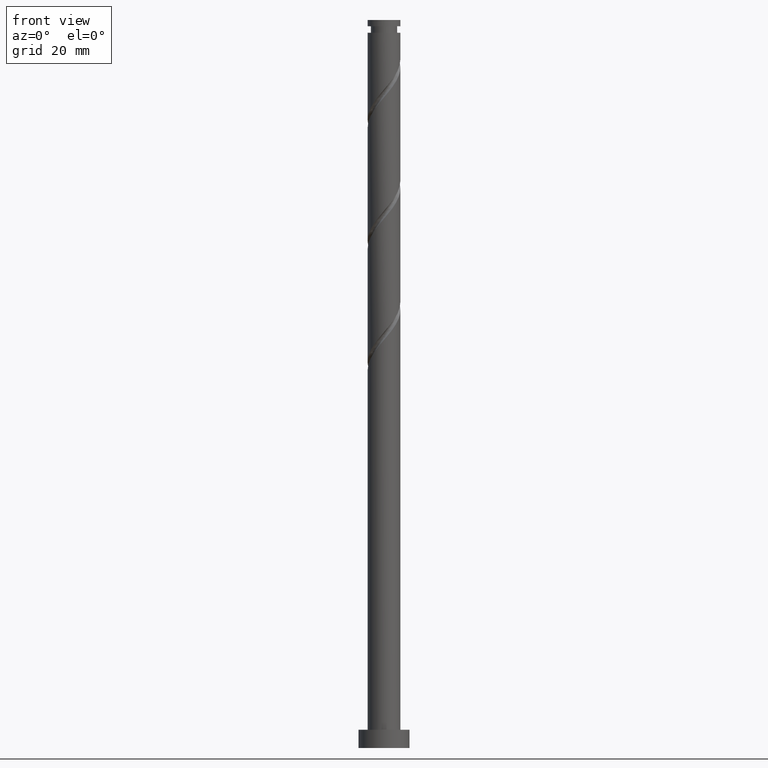
[diagram: clean part render]
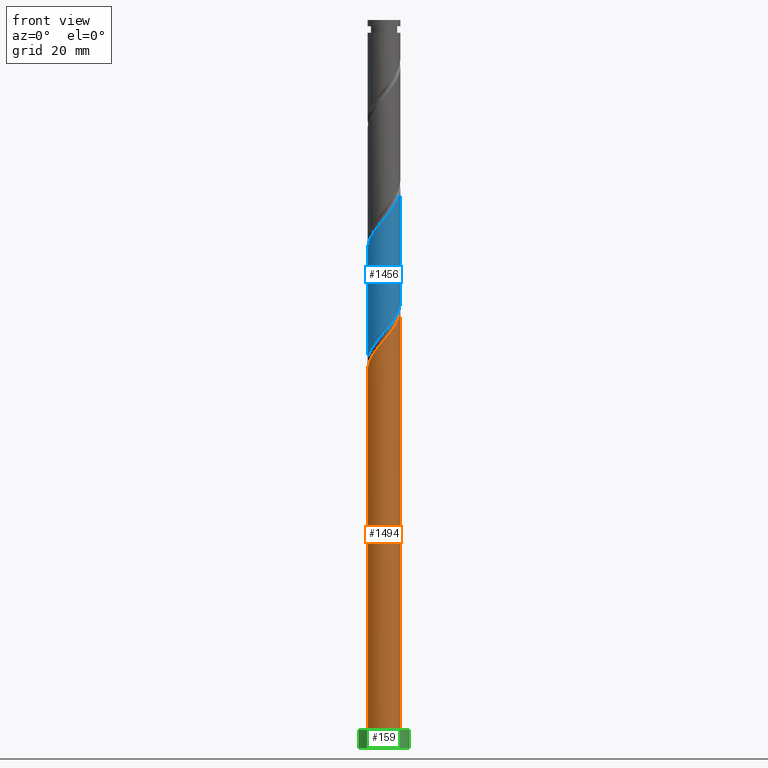
[diagram: same view with three faces highlighted in distinct colors, each labeled with its STEP entity id]
A machine part, front view with three faces highlighted in distinct colors.
Their STEP definitions:

[orange] entity #1494 — the highlighted cylindrical surface (edge-blend (fillet) strip) has radius 4.5 mm, axis along (-0, -0, -1).
#21 = CARTESIAN_POINT ( 'NONE',  ( -1.429484042717369618, -4.266916377387359738, 110.3896359296881542 ) ) ;
#105 = VECTOR ( 'NONE', #1046, 1000.000000000000000 ) ;
#117 = CARTESIAN_POINT ( 'NONE',  ( 2.980515957282637185, -3.371427683991401913, 115.9451914852437255 ) ) ;
#121 = EDGE_LOOP ( 'NONE', ( #753, #1724, #1232, #478 ) ) ;
#153 = LINE ( 'NONE', #1084, #1713 ) ;
#157 = CARTESIAN_POINT ( 'NONE',  ( -3.371427683991401025, -2.980515957282637185, 107.6118581519103827 ) ) ;
#242 = VERTEX_POINT ( 'NONE', #1443 ) ;
#253 = CARTESIAN_POINT ( 'NONE',  ( -4.410000000000008136, -0.8954886933959593787, 104.8340803741325828 ) ) ;
#275 = CARTESIAN_POINT ( 'NONE',  ( -4.292106676953157063, -1.476076207756375158, 105.5285248185770399 ) ) ;
#279 = DIRECTION ( 'NONE',  ( 1.000000000000000000, 0.000000000000000000, 0.000000000000000000 ) ) ;
#358 = CARTESIAN_POINT ( 'NONE',  ( -4.500000000000000000, 0.000000000000000000, 200.0000000000000000 ) ) ;
#377 =( BOUNDED_CURVE ( )  B_SPLINE_CURVE ( 2, ( #1234, #1500, #253, #275, #817, #551, #157, #1200, #1737, #695, #21, #559, #1109, #1642, #426, #973, #787, #1333, #117, #581, #1262, #590, #1142, #1134, #1394, #436, #443 ),
 .UNSPECIFIED., .F., .T. ) 
 B_SPLINE_CURVE_WITH_KNOTS ( ( 3, 2, 2, 2, 2, 2, 2, 2, 2, 2, 2, 2, 2, 3 ),
 ( 0.05453176698144658607, 0.06250000000000000000, 0.07291666666666662966, 0.08333333333333337034, 0.09375000000000000000, 0.1041666666666666297, 0.1145833333333333703, 0.1250000000000000000, 0.1354166666666666297, 0.1458333333333333703, 0.1562500000000000000, 0.1666666666666666297, 0.1770833333333333703, 0.1795317669814462669 ),
 .UNSPECIFIED. ) 
 CURVE ( )  GEOMETRIC_REPRESENTATION_ITEM ( )  RATIONAL_B_SPLINE_CURVE ( ( 0.9062941362546456103, 0.9031415850403503587, 0.9090909090909256030, 0.9013135103398440817, 0.9090909090909256030, 0.9013135103398440817, 0.9090909090909256030, 0.9013135103398440817, 0.9090909090909256030, 0.9013135103398440817, 0.9090909090909256030, 0.9013135103398440817, 0.9090909090909256030, 0.9013135103398440817, 0.9090909090909256030, 0.9013135103398440817, 0.9090909090909256030, 0.9013135103398440817, 0.9090909090909256030, 0.9013135103398440817, 0.9090909090909256030, 0.9013135103398440817, 0.9090909090909256030, 0.9013135103398440817, 0.9090909090909256030, 0.9072628343904193260, 0.9062941362546459434 ) ) 
 REPRESENTATION_ITEM ( '' )  );
#410 = VERTEX_POINT ( 'NONE', #964 ) ;
#413 = DIRECTION ( 'NONE',  ( -1.000000000000000000, 0.000000000000000000, 0.000000000000000000 ) ) ;
#422 = FACE_OUTER_BOUND ( 'NONE', #121, .T. ) ;
#426 = CARTESIAN_POINT ( 'NONE',  ( 0.8954886933959591566, -4.410000000000008136, 113.1674137074659399 ) ) ;
#436 = CARTESIAN_POINT ( 'NONE',  ( 4.500000000000006217, -0.1383387824595370963, 120.2740166975610521 ) ) ;
#443 = CARTESIAN_POINT ( 'NONE',  ( 4.500000000000005329, -2.990756888724012433E-17, 120.4371803855891727 ) ) ;
#478 = ORIENTED_EDGE ( 'NONE', *, *, #1508, .T. ) ;
#492 = EDGE_CURVE ( 'NONE', #242, #1097, #377, .T. ) ;
#494 = LINE ( 'NONE', #358, #105 ) ;
#545 = DIRECTION ( 'NONE',  ( -0.000000000000000000, -0.000000000000000000, -1.000000000000000000 ) ) ;
#551 = CARTESIAN_POINT ( 'NONE',  ( -3.763820053866749227, -2.536659082249879571, 106.9174137074659257 ) ) ;
#559 = CARTESIAN_POINT ( 'NONE',  ( -0.8677338446377593772, -4.455111521872428426, 111.0840803741325828 ) ) ;
#581 = CARTESIAN_POINT ( 'NONE',  ( 3.424372832315394799, -2.979035314116054600, 116.6396359296881400 ) ) ;
#590 = CARTESIAN_POINT ( 'NONE',  ( 4.078721232902290161, -1.991234240796978749, 118.0285248185770541 ) ) ;
#695 = CARTESIAN_POINT ( 'NONE',  ( -1.991234240796978527, -4.078721232902291050, 109.6951914852436971 ) ) ;
#753 = ORIENTED_EDGE ( 'NONE', *, *, #833, .F. ) ;
#787 = CARTESIAN_POINT ( 'NONE',  ( 2.006367645003126920, -4.027963365409951813, 114.5563025963548540 ) ) ;
#817 = CARTESIAN_POINT ( 'NONE',  ( -4.027963365409951813, -2.006367645003127809, 106.2229692630215112 ) ) ;
#833 = EDGE_CURVE ( 'NONE', #1097, #410, #153, .T. ) ;
#964 = CARTESIAN_POINT ( 'NONE',  ( 4.500000000000000000, 5.510910596163088569E-16, 5.000000000000000000 ) ) ;
#973 = CARTESIAN_POINT ( 'NONE',  ( 1.476076207756375158, -4.292106676953157063, 113.8618581519103685 ) ) ;
#988 = CARTESIAN_POINT ( 'NONE',  ( 0.000000000000000000, 0.000000000000000000, 200.0000000000000000 ) ) ;
#1046 = DIRECTION ( 'NONE',  ( -0.000000000000000000, -0.000000000000000000, -1.000000000000000000 ) ) ;
#1084 = CARTESIAN_POINT ( 'NONE',  ( 4.500000000000000000, 5.510910596163088569E-16, 200.0000000000000000 ) ) ;
#1097 = VERTEX_POINT ( 'NONE', #1339 ) ;
#1109 = CARTESIAN_POINT ( 'NONE',  ( -0.2764163328011091103, -4.491502422459643817, 111.7785248185770541 ) ) ;
#1134 = CARTESIAN_POINT ( 'NONE',  ( 4.455111521872428426, -0.8677338446377614867, 119.4174137074658972 ) ) ;
#1142 = CARTESIAN_POINT ( 'NONE',  ( 4.266916377387359738, -1.429484042717370507, 118.7229692630215254 ) ) ;
#1186 = AXIS2_PLACEMENT_3D ( 'NONE', #1659, #1241, #279 ) ;
#1200 = CARTESIAN_POINT ( 'NONE',  ( -2.979035314116054600, -3.424372832315394799, 108.3063025963548256 ) ) ;
#1232 = ORIENTED_EDGE ( 'NONE', *, *, #1700, .T. ) ;
#1234 = CARTESIAN_POINT ( 'NONE',  ( -4.500000000000005329, -2.706634984295230734E-15, 103.7705137189225297 ) ) ;
#1241 = DIRECTION ( 'NONE',  ( 0.000000000000000000, 0.000000000000000000, 1.000000000000000000 ) ) ;
#1262 = CARTESIAN_POINT ( 'NONE',  ( 3.751547032608842702, -2.485134777456517341, 117.3340803741326113 ) ) ;
#1333 = CARTESIAN_POINT ( 'NONE',  ( 2.536659082249878683, -3.763820053866749227, 115.2507470407992685 ) ) ;
#1339 = CARTESIAN_POINT ( 'NONE',  ( 4.500000000000006217, -2.990756888724012433E-17, 120.4371803855891727 ) ) ;
#1370 = CYLINDRICAL_SURFACE ( 'NONE', #1417, 4.500000000000000000 ) ;
#1378 = DIRECTION ( 'NONE',  ( -0.000000000000000000, -0.000000000000000000, -1.000000000000000000 ) ) ;
#1394 = CARTESIAN_POINT ( 'NONE',  ( 4.491502422459643817, -0.2764163328011113863, 120.1118581519103685 ) ) ;
#1417 = AXIS2_PLACEMENT_3D ( 'NONE', #988, #1378, #413 ) ;
#1443 = CARTESIAN_POINT ( 'NONE',  ( -4.500000000000006217, -2.706634984295231129E-15, 103.7705137189225297 ) ) ;
#1494 = ADVANCED_FACE ( 'NONE', ( #422 ), #1370, .T. ) ;
#1500 = CARTESIAN_POINT ( 'NONE',  ( -4.500000000000004441, -0.4522670168666608759, 104.3039400881118297 ) ) ;
#1508 = EDGE_CURVE ( 'NONE', #1596, #410, #1743, .T. ) ;
#1596 = VERTEX_POINT ( 'NONE', #1689 ) ;
#1642 = CARTESIAN_POINT ( 'NONE',  ( 0.3149011790355413232, -4.527893323046858320, 112.4729692630214686 ) ) ;
#1659 = CARTESIAN_POINT ( 'NONE',  ( 0.000000000000000000, 0.000000000000000000, 5.000000000000000000 ) ) ;
#1689 = CARTESIAN_POINT ( 'NONE',  ( -4.500000000000000000, 0.000000000000000000, 5.000000000000000000 ) ) ;
#1700 = EDGE_CURVE ( 'NONE', #242, #1596, #494, .T. ) ;
#1713 = VECTOR ( 'NONE', #545, 1000.000000000000000 ) ;
#1724 = ORIENTED_EDGE ( 'NONE', *, *, #492, .F. ) ;
#1737 = CARTESIAN_POINT ( 'NONE',  ( -2.485134777456515565, -3.751547032608843590, 109.0007470407992685 ) ) ;
#1743 = CIRCLE ( 'NONE', #1186, 4.500000000000000000 ) ;

[blue] entity #1456 — the highlighted cylindrical surface (edge-blend (fillet) strip) has radius 4.5 mm, axis along (-0, -0, -1).
#78 = EDGE_CURVE ( 'NONE', #1118, #495, #1297, .T. ) ;
#83 = CARTESIAN_POINT ( 'NONE',  ( -3.424372832315393467, -2.979035314116047495, 109.6951914852436971 ) ) ;
#147 = DIRECTION ( 'NONE',  ( -1.000000000000000000, 0.000000000000000000, 0.000000000000000000 ) ) ;
#170 = CARTESIAN_POINT ( 'NONE',  ( 2.006367645003126920, -4.027963365409951813, 147.8896359296881826 ) ) ;
#175 = LINE ( 'NONE', #188, #891 ) ;
#188 = CARTESIAN_POINT ( 'NONE',  ( 4.500000000000000000, 5.510910596163088569E-16, 200.0000000000000000 ) ) ;
#191 = VECTOR ( 'NONE', #1223, 1000.000000000000000 ) ;
#205 = CARTESIAN_POINT ( 'NONE',  ( 4.455111521872428426, -0.8677338446377614867, 152.7507470407992400 ) ) ;
#213 = CARTESIAN_POINT ( 'NONE',  ( 4.292106676953146405, -1.476076207756378267, 120.8063025963548114 ) ) ;
#240 = AXIS2_PLACEMENT_3D ( 'NONE', #812, #1130, #147 ) ;
#255 = CARTESIAN_POINT ( 'NONE',  ( -4.500000000000006217, -2.706634984295231129E-15, 137.1038470522558441 ) ) ;
#267 = CARTESIAN_POINT ( 'NONE',  ( -0.8677338446377593772, -4.455111521872428426, 144.4174137074658972 ) ) ;
#294 = CARTESIAN_POINT ( 'NONE',  ( -4.027963365409951813, -2.006367645003127809, 139.5563025963548114 ) ) ;
#296 = ORIENTED_EDGE ( 'NONE', *, *, #856, .F. ) ;
#345 = CARTESIAN_POINT ( 'NONE',  ( -2.980515957282634965, -3.371427683991394364, 110.3896359296881400 ) ) ;
#363 = CARTESIAN_POINT ( 'NONE',  ( 4.500000000000006217, -2.990756888724012433E-17, 153.7705137189225297 ) ) ;
#364 = CARTESIAN_POINT ( 'NONE',  ( -0.8954886933959594897, -4.409999999999999254, 113.1674137074658830 ) ) ;
#370 = ORIENTED_EDGE ( 'NONE', *, *, #78, .F. ) ;
#421 = CARTESIAN_POINT ( 'NONE',  ( -4.500000000000005329, -0.4522670168666444446, 137.6372734214450873 ) ) ;
#424 = ORIENTED_EDGE ( 'NONE', *, *, #636, .F. ) ;
#430 = CARTESIAN_POINT ( 'NONE',  ( 0.8954886933959591566, -4.410000000000008136, 146.5007470407992969 ) ) ;
#451 = DIRECTION ( 'NONE',  ( -0.000000000000000000, -0.000000000000000000, -1.000000000000000000 ) ) ;
#474 = CARTESIAN_POINT ( 'NONE',  ( 2.979035314116047495, -3.424372832315392579, 118.0285248185770683 ) ) ;
#495 = VERTEX_POINT ( 'NONE', #1245 ) ;
#510 = CARTESIAN_POINT ( 'NONE',  ( -4.500000000000001776, -0.1383387824595271598, 106.0608107173707850 ) ) ;
#517 = CARTESIAN_POINT ( 'NONE',  ( 4.500000000000000000, 6.474988664087530280E-15, 122.5643136960093216 ) ) ;
#555 = LINE ( 'NONE', #1106, #191 ) ;
#562 = CARTESIAN_POINT ( 'NONE',  ( -1.429484042717369618, -4.266916377387359738, 143.7229692630214970 ) ) ;
#586 = CYLINDRICAL_SURFACE ( 'NONE', #240, 4.500000000000000000 ) ;
#619 = CARTESIAN_POINT ( 'NONE',  ( -2.006367645003127365, -4.027963365409944707, 111.7785248185770257 ) ) ;
#629 = CARTESIAN_POINT ( 'NONE',  ( 3.371427683991394364, -2.980515957282635853, 118.7229692630214686 ) ) ;
#634 = CARTESIAN_POINT ( 'NONE',  ( 4.500000000000006217, -2.990756888724012433E-17, 153.7705137189225297 ) ) ;
#636 = EDGE_CURVE ( 'NONE', #1074, #1118, #175, .T. ) ;
#647 = CARTESIAN_POINT ( 'NONE',  ( -0.3149011790355445983, -4.527893323046852991, 113.8618581519103827 ) ) ;
#690 = CARTESIAN_POINT ( 'NONE',  ( -3.763820053866749227, -2.536659082249879571, 140.2507470407992969 ) ) ;
#697 = CARTESIAN_POINT ( 'NONE',  ( -4.500000000000005329, -2.706634984295231129E-15, 137.1038470522558441 ) ) ;
#708 = CARTESIAN_POINT ( 'NONE',  ( 2.536659082249878683, -3.763820053866749227, 148.5840803741326113 ) ) ;
#749 = CARTESIAN_POINT ( 'NONE',  ( 2.980515957282637185, -3.371427683991401913, 149.2785248185770968 ) ) ;
#757 = CARTESIAN_POINT ( 'NONE',  ( -4.455111521872423985, -0.8677338446377556025, 106.9174137074659257 ) ) ;
#770 = CARTESIAN_POINT ( 'NONE',  ( 4.266916377387359738, -1.429484042717370507, 152.0563025963548398 ) ) ;
#771 = CARTESIAN_POINT ( 'NONE',  ( -4.500000000000001776, 4.949702650838273832E-15, 105.8976470293426360 ) ) ;
#777 = CARTESIAN_POINT ( 'NONE',  ( 4.500000000000001776, -0.4522670168666432233, 122.0308873268200784 ) ) ;
#812 = CARTESIAN_POINT ( 'NONE',  ( 0.000000000000000000, 0.000000000000000000, 200.0000000000000000 ) ) ;
#834 = CARTESIAN_POINT ( 'NONE',  ( -0.2764163328011091103, -4.491502422459643817, 145.1118581519103259 ) ) ;
#856 = EDGE_CURVE ( 'NONE', #1009, #1074, #1485, .T. ) ;
#882 = CARTESIAN_POINT ( 'NONE',  ( 4.078721232902290161, -1.991234240796978749, 151.3618581519103827 ) ) ;
#891 = VECTOR ( 'NONE', #451, 1000.000000000000000 ) ;
#914 = CARTESIAN_POINT ( 'NONE',  ( 0.2764163328011050580, -4.491502422459638488, 114.5563025963547972 ) ) ;
#922 = CARTESIAN_POINT ( 'NONE',  ( -4.078721232902286609, -1.991234240796972310, 108.3063025963548256 ) ) ;
#946 = CARTESIAN_POINT ( 'NONE',  ( -4.292106676953157063, -1.476076207756375158, 138.8618581519103827 ) ) ;
#968 = CARTESIAN_POINT ( 'NONE',  ( -2.979035314116054600, -3.424372832315394799, 141.6396359296882110 ) ) ;
#980 = CARTESIAN_POINT ( 'NONE',  ( 4.500000000000000000, 6.474988664087530280E-15, 122.5643136960093216 ) ) ;
#1009 = VERTEX_POINT ( 'NONE', #255 ) ;
#1034 = CARTESIAN_POINT ( 'NONE',  ( -2.536659082249878683, -3.763820053866741677, 111.0840803741325828 ) ) ;
#1043 = CARTESIAN_POINT ( 'NONE',  ( -1.476076207756376046, -4.292106676953148181, 112.4729692630214828 ) ) ;
#1074 = VERTEX_POINT ( 'NONE', #634 ) ;
#1106 = CARTESIAN_POINT ( 'NONE',  ( -4.500000000000000000, 0.000000000000000000, 200.0000000000000000 ) ) ;
#1111 = CARTESIAN_POINT ( 'NONE',  ( 0.3149011790355413232, -4.527893323046858320, 145.8063025963548114 ) ) ;
#1118 = VERTEX_POINT ( 'NONE', #517 ) ;
#1130 = DIRECTION ( 'NONE',  ( -0.000000000000000000, -0.000000000000000000, -1.000000000000000000 ) ) ;
#1162 = CARTESIAN_POINT ( 'NONE',  ( 4.409999999999999254, -0.8954886933959597117, 121.5007470407992543 ) ) ;
#1169 = CARTESIAN_POINT ( 'NONE',  ( -4.266916377387353521, -1.429484042717364067, 107.6118581519103543 ) ) ;
#1177 = CARTESIAN_POINT ( 'NONE',  ( 1.429484042717363845, -4.266916377387353521, 115.9451914852436687 ) ) ;
#1187 = CARTESIAN_POINT ( 'NONE',  ( 1.991234240796972310, -4.078721232902286609, 116.6396359296881542 ) ) ;
#1223 = DIRECTION ( 'NONE',  ( -0.000000000000000000, -0.000000000000000000, -1.000000000000000000 ) ) ;
#1238 = CARTESIAN_POINT ( 'NONE',  ( -2.485134777456515565, -3.751547032608843590, 142.3340803741325828 ) ) ;
#1245 = CARTESIAN_POINT ( 'NONE',  ( -4.500000000000000888, 4.949702650838273832E-15, 105.8976470293426360 ) ) ;
#1282 = EDGE_CURVE ( 'NONE', #1009, #495, #555, .T. ) ;
#1287 = CARTESIAN_POINT ( 'NONE',  ( 3.424372832315394799, -2.979035314116054600, 149.9729692630214970 ) ) ;
#1296 = CARTESIAN_POINT ( 'NONE',  ( 0.8677338446377543812, -4.455111521872423985, 115.2507470407992685 ) ) ;
#1297 =( BOUNDED_CURVE ( )  B_SPLINE_CURVE ( 2, ( #980, #777, #1162, #213, #1461, #1589, #629, #474, #1452, #1187, #1177, #1296, #914, #647, #364, #1043, #619, #1034, #345, #83, #1598, #922, #1169, #757, #1316, #510, #771 ),
 .UNSPECIFIED., .F., .T. ) 
 B_SPLINE_CURVE_WITH_KNOTS ( ( 3, 2, 2, 2, 2, 2, 2, 2, 2, 2, 2, 2, 2, 3 ),
 ( 0.8045317669814462391, 0.8125000000000000000, 0.8229166666666666297, 0.8333333333333333703, 0.8437500000000000000, 0.8541666666666666297, 0.8645833333333333703, 0.8750000000000000000, 0.8854166666666666297, 0.8958333333333333703, 0.9062500000000000000, 0.9166666666666666297, 0.9270833333333333703, 0.9295317669814463502 ),
 .UNSPECIFIED. ) 
 CURVE ( )  GEOMETRIC_REPRESENTATION_ITEM ( )  RATIONAL_B_SPLINE_CURVE ( ( 0.9062941362546398372, 0.9031415850403439194, 0.9090909090909194967, 0.9013135103398377534, 0.9090909090909194967, 0.9013135103398377534, 0.9090909090909194967, 0.9013135103398377534, 0.9090909090909194967, 0.9013135103398377534, 0.9090909090909194967, 0.9013135103398377534, 0.9090909090909194967, 0.9013135103398377534, 0.9090909090909194967, 0.9013135103398377534, 0.9090909090909194967, 0.9013135103398377534, 0.9090909090909194967, 0.9013135103398377534, 0.9090909090909194967, 0.9013135103398377534, 0.9090909090909194967, 0.9013135103398377534, 0.9090909090909194967, 0.9072628343904132198, 0.9062941362546397261 ) ) 
 REPRESENTATION_ITEM ( '' )  );
#1305 = CARTESIAN_POINT ( 'NONE',  ( 3.751547032608842702, -2.485134777456517341, 150.6674137074659541 ) ) ;
#1316 = CARTESIAN_POINT ( 'NONE',  ( -4.491502422459638488, -0.2764163328011062792, 106.2229692630214828 ) ) ;
#1330 = ORIENTED_EDGE ( 'NONE', *, *, #1282, .T. ) ;
#1386 = CARTESIAN_POINT ( 'NONE',  ( 1.476076207756375158, -4.292106676953157063, 147.1951914852436119 ) ) ;
#1390 = FACE_OUTER_BOUND ( 'NONE', #1441, .T. ) ;
#1441 = EDGE_LOOP ( 'NONE', ( #424, #296, #1330, #370 ) ) ;
#1451 = CARTESIAN_POINT ( 'NONE',  ( 4.500000000000007105, -0.1383387824595293247, 153.6073500308943949 ) ) ;
#1452 = CARTESIAN_POINT ( 'NONE',  ( 2.485134777456508015, -3.751547032608839150, 117.3340803741325686 ) ) ;
#1456 = ADVANCED_FACE ( 'NONE', ( #1390 ), #586, .T. ) ;
#1461 = CARTESIAN_POINT ( 'NONE',  ( 4.027963365409942931, -2.006367645003129585, 120.1118581519103543 ) ) ;
#1485 =( BOUNDED_CURVE ( )  B_SPLINE_CURVE ( 2, ( #697, #421, #1625, #946, #294, #690, #1617, #968, #1238, #1492, #562, #267, #834, #1111, #430, #1386, #170, #708, #749, #1287, #1305, #882, #770, #205, #1694, #1451, #363 ),
 .UNSPECIFIED., .F., .T. ) 
 B_SPLINE_CURVE_WITH_KNOTS ( ( 3, 2, 2, 2, 2, 2, 2, 2, 2, 2, 2, 2, 2, 3 ),
 ( 0.3045317669814462946, 0.3125000000000000000, 0.3229166666666666297, 0.3333333333333333703, 0.3437500000000000000, 0.3541666666666666297, 0.3645833333333333703, 0.3750000000000000000, 0.3854166666666666297, 0.3958333333333333703, 0.4062500000000000000, 0.4166666666666666297, 0.4270833333333333703, 0.4295317669814464057 ),
 .UNSPECIFIED. ) 
 CURVE ( )  GEOMETRIC_REPRESENTATION_ITEM ( )  RATIONAL_B_SPLINE_CURVE ( ( 0.9062941362546459434, 0.9031415850403502477, 0.9090909090909256030, 0.9013135103398440817, 0.9090909090909256030, 0.9013135103398440817, 0.9090909090909256030, 0.9013135103398440817, 0.9090909090909256030, 0.9013135103398440817, 0.9090909090909256030, 0.9013135103398440817, 0.9090909090909256030, 0.9013135103398440817, 0.9090909090909256030, 0.9013135103398440817, 0.9090909090909256030, 0.9013135103398440817, 0.9090909090909256030, 0.9013135103398440817, 0.9090909090909256030, 0.9013135103398440817, 0.9090909090909256030, 0.9013135103398440817, 0.9090909090909256030, 0.9072628343904192150, 0.9062941362546457214 ) ) 
 REPRESENTATION_ITEM ( '' )  );
#1492 = CARTESIAN_POINT ( 'NONE',  ( -1.991234240796978527, -4.078721232902291050, 143.0285248185770115 ) ) ;
#1589 = CARTESIAN_POINT ( 'NONE',  ( 3.763820053866741677, -2.536659082249880459, 119.4174137074659541 ) ) ;
#1598 = CARTESIAN_POINT ( 'NONE',  ( -3.751547032608838261, -2.485134777456510680, 109.0007470407992543 ) ) ;
#1617 = CARTESIAN_POINT ( 'NONE',  ( -3.371427683991401025, -2.980515957282637185, 140.9451914852437540 ) ) ;
#1625 = CARTESIAN_POINT ( 'NONE',  ( -4.410000000000008136, -0.8954886933959593787, 138.1674137074659541 ) ) ;
#1694 = CARTESIAN_POINT ( 'NONE',  ( 4.491502422459643817, -0.2764163328011113863, 153.4451914852437824 ) ) ;

[green] entity #159 — the highlighted cylindrical surface (edge-blend (fillet) strip) has radius 7 mm, axis along (-0, -0, -1).
#17 = CARTESIAN_POINT ( 'NONE',  ( 7.000000000000000000, 8.572527594031473190E-16, 0.000000000000000000 ) ) ;
#35 = DIRECTION ( 'NONE',  ( -0.000000000000000000, -0.000000000000000000, -1.000000000000000000 ) ) ;
#100 = EDGE_CURVE ( 'NONE', #1182, #836, #525, .T. ) ;
#102 = AXIS2_PLACEMENT_3D ( 'NONE', #233, #1695, #1324 ) ;
#159 = ADVANCED_FACE ( 'NONE', ( #1710 ), #355, .T. ) ;
#166 = AXIS2_PLACEMENT_3D ( 'NONE', #639, #883, #381 ) ;
#182 = LINE ( 'NONE', #1016, #839 ) ;
#233 = CARTESIAN_POINT ( 'NONE',  ( 0.000000000000000000, 0.000000000000000000, 5.000000000000000000 ) ) ;
#355 = CYLINDRICAL_SURFACE ( 'NONE', #166, 7.000000000000000000 ) ;
#381 = DIRECTION ( 'NONE',  ( -1.000000000000000000, 0.000000000000000000, 0.000000000000000000 ) ) ;
#467 = CIRCLE ( 'NONE', #591, 7.000000000000000000 ) ;
#498 = ORIENTED_EDGE ( 'NONE', *, *, #648, .T. ) ;
#525 = CIRCLE ( 'NONE', #102, 7.000000000000000000 ) ;
#591 = AXIS2_PLACEMENT_3D ( 'NONE', #1251, #1531, #700 ) ;
#639 = CARTESIAN_POINT ( 'NONE',  ( 0.000000000000000000, 0.000000000000000000, 5.000000000000000000 ) ) ;
#648 = EDGE_CURVE ( 'NONE', #1182, #686, #182, .T. ) ;
#686 = VERTEX_POINT ( 'NONE', #1678 ) ;
#692 = ORIENTED_EDGE ( 'NONE', *, *, #1545, .T. ) ;
#700 = DIRECTION ( 'NONE',  ( 1.000000000000000000, 0.000000000000000000, 0.000000000000000000 ) ) ;
#713 = CARTESIAN_POINT ( 'NONE',  ( 7.000000000000000000, 8.572527594031473190E-16, 5.000000000000000000 ) ) ;
#810 = VECTOR ( 'NONE', #969, 1000.000000000000000 ) ;
#820 = LINE ( 'NONE', #713, #810 ) ;
#836 = VERTEX_POINT ( 'NONE', #1377 ) ;
#839 = VECTOR ( 'NONE', #35, 1000.000000000000000 ) ;
#883 = DIRECTION ( 'NONE',  ( -0.000000000000000000, -0.000000000000000000, -1.000000000000000000 ) ) ;
#958 = EDGE_LOOP ( 'NONE', ( #1732, #1152, #498, #692 ) ) ;
#969 = DIRECTION ( 'NONE',  ( -0.000000000000000000, -0.000000000000000000, -1.000000000000000000 ) ) ;
#1016 = CARTESIAN_POINT ( 'NONE',  ( -7.000000000000000000, 0.000000000000000000, 5.000000000000000000 ) ) ;
#1152 = ORIENTED_EDGE ( 'NONE', *, *, #100, .F. ) ;
#1182 = VERTEX_POINT ( 'NONE', #1319 ) ;
#1251 = CARTESIAN_POINT ( 'NONE',  ( 0.000000000000000000, 0.000000000000000000, 0.000000000000000000 ) ) ;
#1255 = VERTEX_POINT ( 'NONE', #17 ) ;
#1319 = CARTESIAN_POINT ( 'NONE',  ( -7.000000000000000000, 0.000000000000000000, 5.000000000000000000 ) ) ;
#1324 = DIRECTION ( 'NONE',  ( 1.000000000000000000, 0.000000000000000000, 0.000000000000000000 ) ) ;
#1377 = CARTESIAN_POINT ( 'NONE',  ( 7.000000000000000000, 8.572527594031473190E-16, 5.000000000000000000 ) ) ;
#1529 = EDGE_CURVE ( 'NONE', #836, #1255, #820, .T. ) ;
#1531 = DIRECTION ( 'NONE',  ( 0.000000000000000000, 0.000000000000000000, 1.000000000000000000 ) ) ;
#1545 = EDGE_CURVE ( 'NONE', #686, #1255, #467, .T. ) ;
#1678 = CARTESIAN_POINT ( 'NONE',  ( -7.000000000000000000, 0.000000000000000000, 0.000000000000000000 ) ) ;
#1695 = DIRECTION ( 'NONE',  ( 0.000000000000000000, 0.000000000000000000, 1.000000000000000000 ) ) ;
#1710 = FACE_OUTER_BOUND ( 'NONE', #958, .T. ) ;
#1732 = ORIENTED_EDGE ( 'NONE', *, *, #1529, .F. ) ;